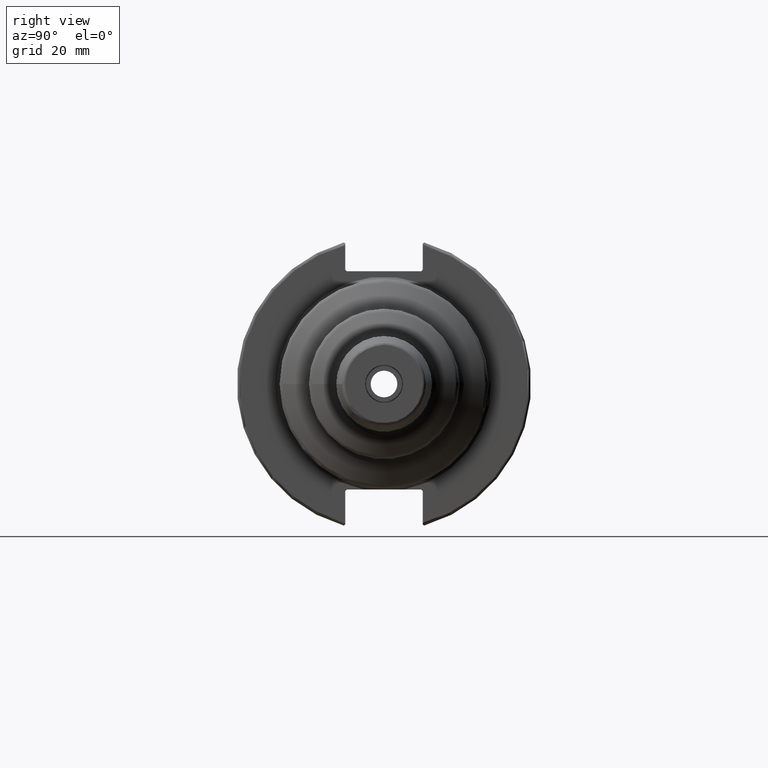
[diagram: clean part render]
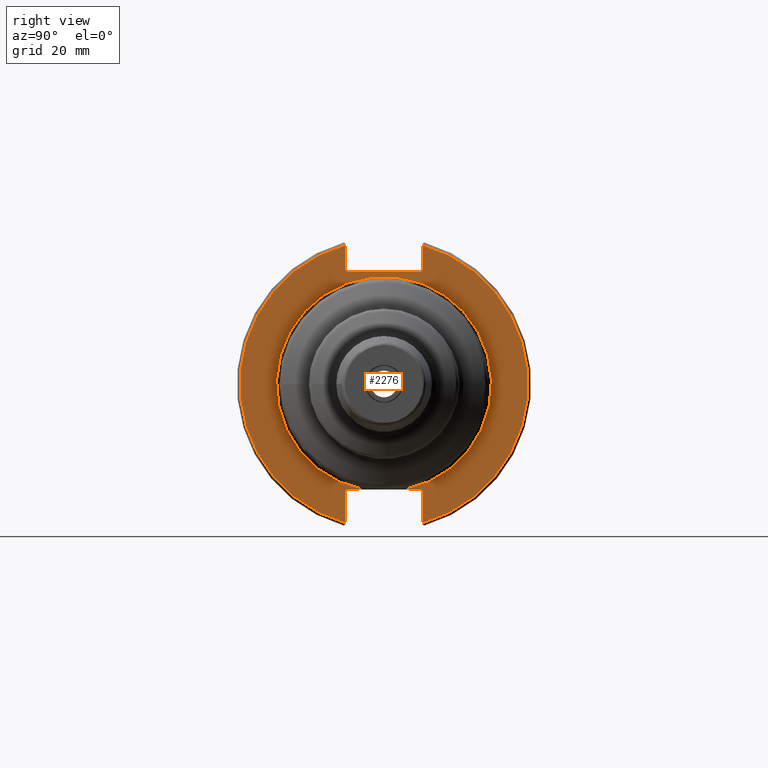
[diagram: same view with one face highlighted and labeled with its STEP entity id]
A machine part, right view. The second image highlights one B-rep face of the part: STEP entity #2276.
In plain terms, the highlighted planar face has unit normal (1, 0, 0).
Its self-contained STEP definition (entity closure, byte-faithful):
#47=PLANE('',#2577);
#241=FACE_OUTER_BOUND('',#369,.T.);
#369=EDGE_LOOP('',(#1940,#1941,#1942,#1943,#1944,#1945,#1946,#1947,#1948,
#1949,#1950,#1951,#1952,#1953));
#475=LINE('',#4325,#582);
#478=LINE('',#4340,#585);
#479=LINE('',#4341,#586);
#480=LINE('',#4343,#587);
#481=LINE('',#4345,#588);
#482=LINE('',#4347,#589);
#483=LINE('',#4349,#590);
#484=LINE('',#4351,#591);
#485=LINE('',#4355,#592);
#486=LINE('',#4357,#593);
#487=LINE('',#4358,#594);
#582=VECTOR('',#3192,10.);
#585=VECTOR('',#3197,10.);
#586=VECTOR('',#3198,10.);
#587=VECTOR('',#3199,10.);
#588=VECTOR('',#3200,10.);
#589=VECTOR('',#3201,10.);
#590=VECTOR('',#3202,10.);
#591=VECTOR('',#3203,10.);
#592=VECTOR('',#3206,10.);
#593=VECTOR('',#3207,10.);
#594=VECTOR('',#3208,10.);
#740=CIRCLE('',#2485,35.95);
#792=CIRCLE('',#2573,48.2125);
#794=CIRCLE('',#2578,48.2125);
#927=VERTEX_POINT('',#3722);
#928=VERTEX_POINT('',#3729);
#1026=VERTEX_POINT('',#4280);
#1027=VERTEX_POINT('',#4287);
#1033=VERTEX_POINT('',#4324);
#1035=VERTEX_POINT('',#4339);
#1036=VERTEX_POINT('',#4342);
#1037=VERTEX_POINT('',#4344);
#1038=VERTEX_POINT('',#4346);
#1039=VERTEX_POINT('',#4348);
#1040=VERTEX_POINT('',#4350);
#1041=VERTEX_POINT('',#4352);
#1042=VERTEX_POINT('',#4354);
#1043=VERTEX_POINT('',#4356);
#1222=EDGE_CURVE('',#927,#928,#740,.T.);
#1345=EDGE_CURVE('',#1026,#1027,#792,.T.);
#1353=EDGE_CURVE('',#1033,#1027,#475,.T.);
#1358=EDGE_CURVE('',#927,#1035,#478,.T.);
#1359=EDGE_CURVE('',#1033,#1035,#479,.T.);
#1360=EDGE_CURVE('',#1026,#1036,#480,.T.);
#1361=EDGE_CURVE('',#1037,#1036,#481,.T.);
#1362=EDGE_CURVE('',#1037,#1038,#482,.T.);
#1363=EDGE_CURVE('',#1039,#1038,#483,.T.);
#1364=EDGE_CURVE('',#1039,#1040,#484,.T.);
#1365=EDGE_CURVE('',#1041,#1040,#794,.T.);
#1366=EDGE_CURVE('',#1041,#1042,#485,.T.);
#1367=EDGE_CURVE('',#1043,#1042,#486,.T.);
#1368=EDGE_CURVE('',#1043,#928,#487,.T.);
#1940=ORIENTED_EDGE('',*,*,#1222,.F.);
#1941=ORIENTED_EDGE('',*,*,#1358,.T.);
#1942=ORIENTED_EDGE('',*,*,#1359,.F.);
#1943=ORIENTED_EDGE('',*,*,#1353,.T.);
#1944=ORIENTED_EDGE('',*,*,#1345,.F.);
#1945=ORIENTED_EDGE('',*,*,#1360,.T.);
#1946=ORIENTED_EDGE('',*,*,#1361,.F.);
#1947=ORIENTED_EDGE('',*,*,#1362,.T.);
#1948=ORIENTED_EDGE('',*,*,#1363,.F.);
#1949=ORIENTED_EDGE('',*,*,#1364,.T.);
#1950=ORIENTED_EDGE('',*,*,#1365,.F.);
#1951=ORIENTED_EDGE('',*,*,#1366,.T.);
#1952=ORIENTED_EDGE('',*,*,#1367,.F.);
#1953=ORIENTED_EDGE('',*,*,#1368,.T.);
#2276=ADVANCED_FACE('',(#241),#47,.T.);
#2485=AXIS2_PLACEMENT_3D('',#3730,#2965,#2966);
#2573=AXIS2_PLACEMENT_3D('',#4288,#3182,#3183);
#2577=AXIS2_PLACEMENT_3D('',#4338,#3195,#3196);
#2578=AXIS2_PLACEMENT_3D('',#4353,#3204,#3205);
#2965=DIRECTION('center_axis',(1.,0.,0.));
#2966=DIRECTION('ref_axis',(0.,-1.,-1.22464679914735E-16));
#3182=DIRECTION('center_axis',(-1.,0.,0.));
#3183=DIRECTION('ref_axis',(0.,1.,-6.12323399573677E-17));
#3192=DIRECTION('',(0.,0.,-1.));
#3195=DIRECTION('center_axis',(1.,0.,0.));
#3196=DIRECTION('ref_axis',(0.,0.,-1.));
#3197=DIRECTION('',(0.,1.,0.));
#3198=DIRECTION('',(0.,-0.707106781186549,0.707106781186546));
#3199=DIRECTION('',(0.,0.,-1.));
#3200=DIRECTION('',(0.,0.707106781186549,0.707106781186546));
#3201=DIRECTION('',(0.,-1.,0.));
#3202=DIRECTION('',(0.,0.707106781186549,-0.707106781186546));
#3203=DIRECTION('',(0.,0.,1.));
#3204=DIRECTION('center_axis',(-1.,0.,0.));
#3205=DIRECTION('ref_axis',(0.,-1.,1.60812264967664E-16));
#3206=DIRECTION('',(0.,0.,1.));
#3207=DIRECTION('',(0.,-0.707106781186549,-0.707106781186546));
#3208=DIRECTION('',(0.,1.,0.));
#3722=CARTESIAN_POINT('',(19.05,6.77413197391373,-35.306));
#3729=CARTESIAN_POINT('',(19.05,-6.77413197391373,-35.306));
#3730=CARTESIAN_POINT('Origin',(19.05,0.,0.));
#4280=CARTESIAN_POINT('',(19.05,12.95,46.4407434937254));
#4287=CARTESIAN_POINT('',(19.05,12.95,-46.4407434937254));
#4288=CARTESIAN_POINT('Origin',(19.05,0.,0.));
#4324=CARTESIAN_POINT('',(19.05,12.95,-35.806));
#4325=CARTESIAN_POINT('',(19.05,12.95,-17.653));
#4338=CARTESIAN_POINT('Origin',(19.05,0.,0.));
#4339=CARTESIAN_POINT('',(19.05,12.45,-35.306));
#4340=CARTESIAN_POINT('',(19.05,-3.33066907387547E-15,-35.306));
#4341=CARTESIAN_POINT('',(19.05,0.635999999999982,-23.492));
#4342=CARTESIAN_POINT('',(19.05,12.95,38.219));
#4343=CARTESIAN_POINT('',(19.05,12.95,18.8595));
#4344=CARTESIAN_POINT('',(19.05,12.45,37.719));
#4345=CARTESIAN_POINT('',(19.05,0.0327499999999836,25.30175));
#4346=CARTESIAN_POINT('',(19.05,-12.45,37.719));
#4347=CARTESIAN_POINT('',(19.05,0.,37.719));
#4348=CARTESIAN_POINT('',(19.05,-12.95,38.219));
#4349=CARTESIAN_POINT('',(19.05,-0.0327499999999817,25.30175));
#4350=CARTESIAN_POINT('',(19.05,-12.95,46.4407434937254));
#4351=CARTESIAN_POINT('',(19.05,-12.95,18.8595));
#4352=CARTESIAN_POINT('',(19.05,-12.95,-46.4407434937254));
#4353=CARTESIAN_POINT('Origin',(19.05,0.,0.));
#4354=CARTESIAN_POINT('',(19.05,-12.95,-35.806));
#4355=CARTESIAN_POINT('',(19.05,-12.95,-17.653));
#4356=CARTESIAN_POINT('',(19.05,-12.45,-35.306));
#4357=CARTESIAN_POINT('',(19.05,-0.635999999999989,-23.492));
#4358=CARTESIAN_POINT('',(19.05,-3.33066907387547E-15,-35.306));